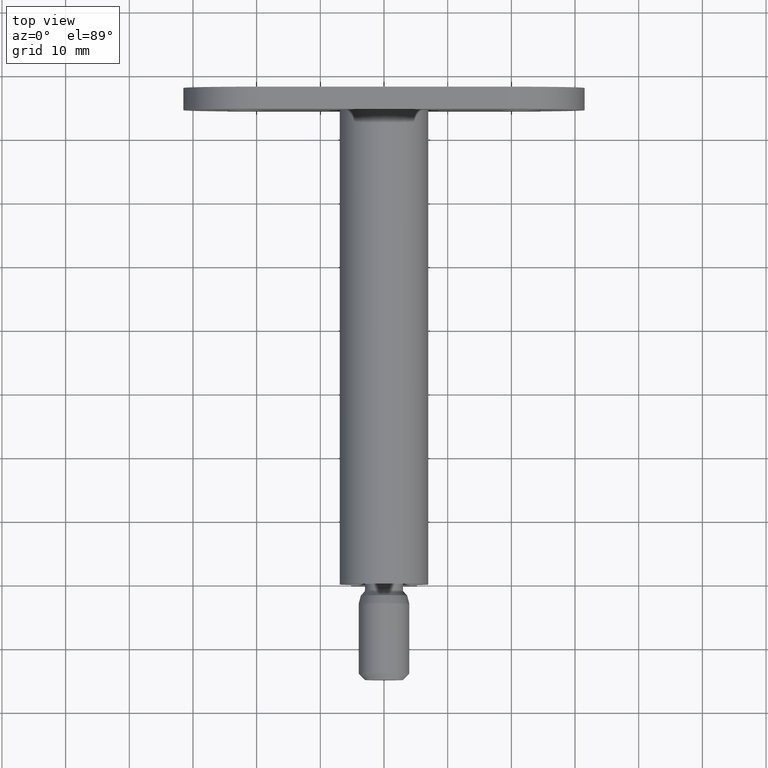
[diagram: clean part render]
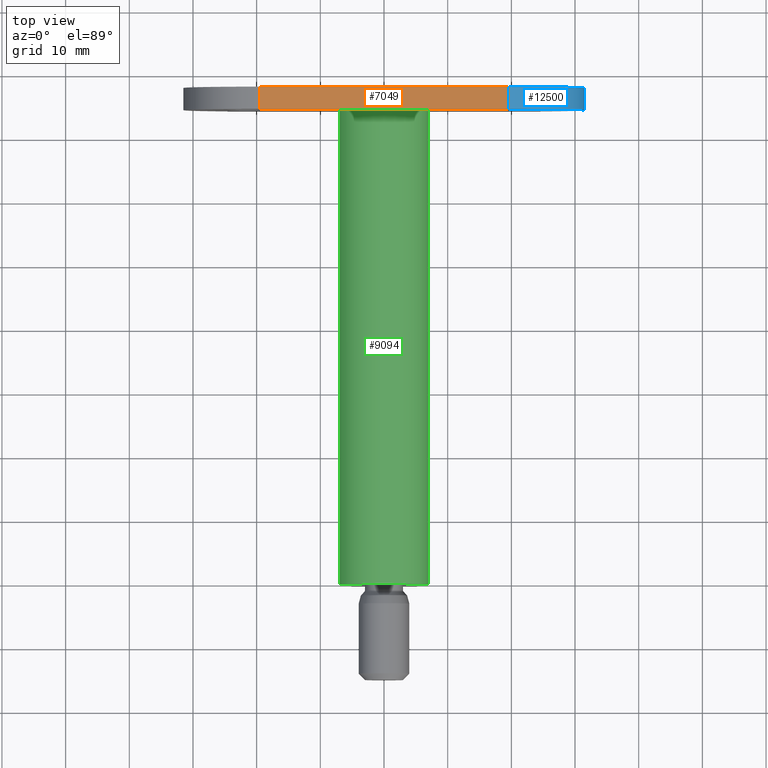
[diagram: same view with three faces highlighted in distinct colors, each labeled with its STEP entity id]
A machine part, top view with three faces highlighted in distinct colors.
Their STEP definitions:

[orange] entity #7049 — the highlighted planar face has unit normal (0, 0, -1).
#63 = VECTOR ( 'NONE', #7853, 1000.000000000000000 ) ;
#108 = VERTEX_POINT ( 'NONE', #6934 ) ;
#1297 = CARTESIAN_POINT ( 'NONE',  ( -12.00000000000000000, 3.500000000000003109, -19.50000000000000355 ) ) ;
#1506 = DIRECTION ( 'NONE',  ( -0.000000000000000000, 1.000000000000000000, -0.000000000000000000 ) ) ;
#1676 = ORIENTED_EDGE ( 'NONE', *, *, #9398, .F. ) ;
#1915 = ORIENTED_EDGE ( 'NONE', *, *, #8725, .T. ) ;
#2529 = ORIENTED_EDGE ( 'NONE', *, *, #9582, .T. ) ;
#3491 = CARTESIAN_POINT ( 'NONE',  ( -12.00000000000000000, 3.500000000000003109, -19.50000000000000355 ) ) ;
#4032 = DIRECTION ( 'NONE',  ( 0.000000000000000000, 0.000000000000000000, -1.000000000000000000 ) ) ;
#4127 = PLANE ( 'NONE',  #5449 ) ;
#4151 = CARTESIAN_POINT ( 'NONE',  ( -12.00000000000000000, 0.000000000000000000, 31.50000000000000000 ) ) ;
#4298 = DIRECTION ( 'NONE',  ( 0.000000000000000000, 0.000000000000000000, -1.000000000000000000 ) ) ;
#5282 = VERTEX_POINT ( 'NONE', #7712 ) ;
#5436 = LINE ( 'NONE', #4151, #10950 ) ;
#5449 = AXIS2_PLACEMENT_3D ( 'NONE', #10500, #12654, #4032 ) ;
#6043 = VERTEX_POINT ( 'NONE', #1297 ) ;
#6059 = CARTESIAN_POINT ( 'NONE',  ( -12.00000000000000000, 3.500000000000003109, 31.50000000000000000 ) ) ;
#6934 = CARTESIAN_POINT ( 'NONE',  ( -12.00000000000000000, 3.500000000000003109, 19.50000000000000000 ) ) ;
#7049 = ADVANCED_FACE ( 'NONE', ( #10473 ), #4127, .F. ) ;
#7247 = ORIENTED_EDGE ( 'NONE', *, *, #13145, .T. ) ;
#7712 = CARTESIAN_POINT ( 'NONE',  ( -12.00000000000000000, 0.000000000000000000, 19.50000000000000000 ) ) ;
#7775 = CARTESIAN_POINT ( 'NONE',  ( -12.00000000000000000, 3.500000000000003109, 19.50000000000000000 ) ) ;
#7853 = DIRECTION ( 'NONE',  ( 0.000000000000000000, -1.000000000000000000, 0.000000000000000000 ) ) ;
#8295 = LINE ( 'NONE', #3491, #63 ) ;
#8725 = EDGE_CURVE ( 'NONE', #108, #6043, #13823, .T. ) ;
#9197 = CARTESIAN_POINT ( 'NONE',  ( -12.00000000000000000, 0.000000000000000000, -19.50000000000000355 ) ) ;
#9257 = VECTOR ( 'NONE', #9303, 1000.000000000000000 ) ;
#9303 = DIRECTION ( 'NONE',  ( 0.000000000000000000, 0.000000000000000000, -1.000000000000000000 ) ) ;
#9331 = EDGE_LOOP ( 'NONE', ( #1915, #7247, #1676, #2529 ) ) ;
#9398 = EDGE_CURVE ( 'NONE', #5282, #12342, #5436, .T. ) ;
#9410 = VECTOR ( 'NONE', #1506, 1000.000000000000000 ) ;
#9582 = EDGE_CURVE ( 'NONE', #5282, #108, #12979, .T. ) ;
#10473 = FACE_OUTER_BOUND ( 'NONE', #9331, .T. ) ;
#10500 = CARTESIAN_POINT ( 'NONE',  ( -12.00000000000000000, 3.500000000000003109, 31.50000000000000000 ) ) ;
#10950 = VECTOR ( 'NONE', #4298, 1000.000000000000000 ) ;
#12342 = VERTEX_POINT ( 'NONE', #9197 ) ;
#12654 = DIRECTION ( 'NONE',  ( 1.000000000000000000, 0.000000000000000000, 0.000000000000000000 ) ) ;
#12979 = LINE ( 'NONE', #7775, #9410 ) ;
#13145 = EDGE_CURVE ( 'NONE', #6043, #12342, #8295, .T. ) ;
#13823 = LINE ( 'NONE', #6059, #9257 ) ;

[blue] entity #12500 — the highlighted cylindrical surface (partial cylindrical patch) has radius 12 mm, axis along (0, 1, 0).
#108 = VERTEX_POINT ( 'NONE', #6934 ) ;
#286 = CIRCLE ( 'NONE', #11492, 12.00000000000000000 ) ;
#701 = EDGE_CURVE ( 'NONE', #4645, #10289, #12070, .T. ) ;
#886 = EDGE_CURVE ( 'NONE', #4645, #5282, #286, .T. ) ;
#1142 = DIRECTION ( 'NONE',  ( -1.807003620809173892E-16, 1.000000000000000000, -0.000000000000000000 ) ) ;
#1210 = AXIS2_PLACEMENT_3D ( 'NONE', #9867, #1142, #3369 ) ;
#1316 = EDGE_LOOP ( 'NONE', ( #7748, #4260, #1866, #12418 ) ) ;
#1506 = DIRECTION ( 'NONE',  ( -0.000000000000000000, 1.000000000000000000, -0.000000000000000000 ) ) ;
#1783 = FACE_OUTER_BOUND ( 'NONE', #1316, .T. ) ;
#1866 = ORIENTED_EDGE ( 'NONE', *, *, #886, .F. ) ;
#2236 = DIRECTION ( 'NONE',  ( -0.000000000000000000, -1.000000000000000000, -0.000000000000000000 ) ) ;
#3292 = CYLINDRICAL_SURFACE ( 'NONE', #9096, 12.00000000000000000 ) ;
#3369 = DIRECTION ( 'NONE',  ( 1.000000000000000000, 1.807003620809174139E-16, 0.000000000000000000 ) ) ;
#4173 = CARTESIAN_POINT ( 'NONE',  ( -2.888894916580853780E-31, 0.000000000000000000, 31.50000000000000000 ) ) ;
#4260 = ORIENTED_EDGE ( 'NONE', *, *, #9582, .F. ) ;
#4645 = VERTEX_POINT ( 'NONE', #4173 ) ;
#5282 = VERTEX_POINT ( 'NONE', #7712 ) ;
#6934 = CARTESIAN_POINT ( 'NONE',  ( -12.00000000000000000, 3.500000000000003109, 19.50000000000000000 ) ) ;
#7382 = CARTESIAN_POINT ( 'NONE',  ( -2.888894916580853780E-31, 3.500000000000003109, 31.50000000000000000 ) ) ;
#7568 = DIRECTION ( 'NONE',  ( 0.000000000000000000, 1.000000000000000000, 0.000000000000000000 ) ) ;
#7712 = CARTESIAN_POINT ( 'NONE',  ( -12.00000000000000000, 0.000000000000000000, 19.50000000000000000 ) ) ;
#7748 = ORIENTED_EDGE ( 'NONE', *, *, #11860, .F. ) ;
#7775 = CARTESIAN_POINT ( 'NONE',  ( -12.00000000000000000, 3.500000000000003109, 19.50000000000000000 ) ) ;
#9096 = AXIS2_PLACEMENT_3D ( 'NONE', #13921, #7568, #10725 ) ;
#9103 = CARTESIAN_POINT ( 'NONE',  ( -2.888894916580853780E-31, 3.500000000000003109, 31.50000000000000000 ) ) ;
#9175 = VECTOR ( 'NONE', #12562, 1000.000000000000000 ) ;
#9410 = VECTOR ( 'NONE', #1506, 1000.000000000000000 ) ;
#9582 = EDGE_CURVE ( 'NONE', #5282, #108, #12979, .T. ) ;
#9675 = CARTESIAN_POINT ( 'NONE',  ( 9.629649721936179265E-32, 0.000000000000000000, 19.50000000000000000 ) ) ;
#9867 = CARTESIAN_POINT ( 'NONE',  ( 9.629649721936179265E-32, 3.500000000000003109, 19.50000000000000000 ) ) ;
#10289 = VERTEX_POINT ( 'NONE', #9103 ) ;
#10725 = DIRECTION ( 'NONE',  ( 0.000000000000000000, 0.000000000000000000, 1.000000000000000000 ) ) ;
#11492 = AXIS2_PLACEMENT_3D ( 'NONE', #9675, #2236, #11843 ) ;
#11843 = DIRECTION ( 'NONE',  ( 0.000000000000000000, 0.000000000000000000, 1.000000000000000000 ) ) ;
#11860 = EDGE_CURVE ( 'NONE', #108, #10289, #13704, .T. ) ;
#12070 = LINE ( 'NONE', #7382, #9175 ) ;
#12418 = ORIENTED_EDGE ( 'NONE', *, *, #701, .T. ) ;
#12500 = ADVANCED_FACE ( 'NONE', ( #1783 ), #3292, .T. ) ;
#12562 = DIRECTION ( 'NONE',  ( 0.000000000000000000, 1.000000000000000000, 0.000000000000000000 ) ) ;
#12979 = LINE ( 'NONE', #7775, #9410 ) ;
#13704 = CIRCLE ( 'NONE', #1210, 12.00000000000000000 ) ;
#13921 = CARTESIAN_POINT ( 'NONE',  ( 9.629649721936179265E-32, 0.000000000000000000, 19.50000000000000000 ) ) ;

[green] entity #9094 — the highlighted cylindrical surface (bore or boss wall) has radius 7 mm, axis along (-0, -1, -0).
#1131 = DIRECTION ( 'NONE',  ( -0.000000000000000000, -1.000000000000000000, -0.000000000000000000 ) ) ;
#1324 = CARTESIAN_POINT ( 'NONE',  ( 0.000000000000000000, -9.860761315262647568E-29, 0.000000000000000000 ) ) ;
#1479 = DIRECTION ( 'NONE',  ( 0.000000000000000000, 0.000000000000000000, -1.000000000000000000 ) ) ;
#2412 = CYLINDRICAL_SURFACE ( 'NONE', #10369, 7.000000000000000000 ) ;
#2752 = CIRCLE ( 'NONE', #13610, 7.000000000000000000 ) ;
#3011 = EDGE_LOOP ( 'NONE', ( #10793 ) ) ;
#3104 = CIRCLE ( 'NONE', #5335, 7.000000000000000000 ) ;
#3294 = ORIENTED_EDGE ( 'NONE', *, *, #4732, .T. ) ;
#3930 = VERTEX_POINT ( 'NONE', #10823 ) ;
#4732 = EDGE_CURVE ( 'NONE', #3930, #3930, #3104, .T. ) ;
#5335 = AXIS2_PLACEMENT_3D ( 'NONE', #13611, #9397, #7207 ) ;
#5444 = CARTESIAN_POINT ( 'NONE',  ( 0.000000000000000000, -9.860761315262647568E-29, -7.000000000000000000 ) ) ;
#6765 = CARTESIAN_POINT ( 'NONE',  ( 0.000000000000000000, 0.000000000000000000, 0.000000000000000000 ) ) ;
#6810 = DIRECTION ( 'NONE',  ( -0.000000000000000000, -1.000000000000000000, -0.000000000000000000 ) ) ;
#7147 = VERTEX_POINT ( 'NONE', #5444 ) ;
#7207 = DIRECTION ( 'NONE',  ( 0.000000000000000000, 0.000000000000000000, -1.000000000000000000 ) ) ;
#7398 = EDGE_LOOP ( 'NONE', ( #3294 ) ) ;
#7999 = EDGE_CURVE ( 'NONE', #7147, #7147, #2752, .T. ) ;
#9094 = ADVANCED_FACE ( 'NONE', ( #12297, #12621 ), #2412, .T. ) ;
#9397 = DIRECTION ( 'NONE',  ( -0.000000000000000000, -1.000000000000000000, -0.000000000000000000 ) ) ;
#9859 = DIRECTION ( 'NONE',  ( 0.000000000000000000, 0.000000000000000000, -1.000000000000000000 ) ) ;
#10369 = AXIS2_PLACEMENT_3D ( 'NONE', #6765, #6810, #1479 ) ;
#10793 = ORIENTED_EDGE ( 'NONE', *, *, #7999, .F. ) ;
#10823 = CARTESIAN_POINT ( 'NONE',  ( 0.000000000000000000, 75.00000000000000000, -7.000000000000000000 ) ) ;
#12297 = FACE_OUTER_BOUND ( 'NONE', #7398, .T. ) ;
#12621 = FACE_OUTER_BOUND ( 'NONE', #3011, .T. ) ;
#13610 = AXIS2_PLACEMENT_3D ( 'NONE', #1324, #1131, #9859 ) ;
#13611 = CARTESIAN_POINT ( 'NONE',  ( 0.000000000000000000, 75.00000000000000000, 0.000000000000000000 ) ) ;